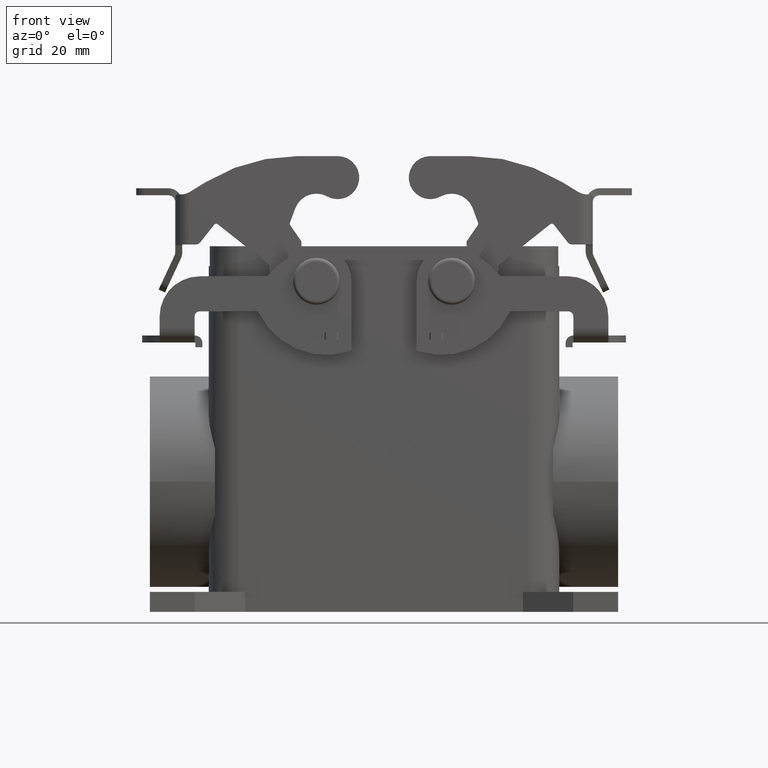
[diagram: clean part render]
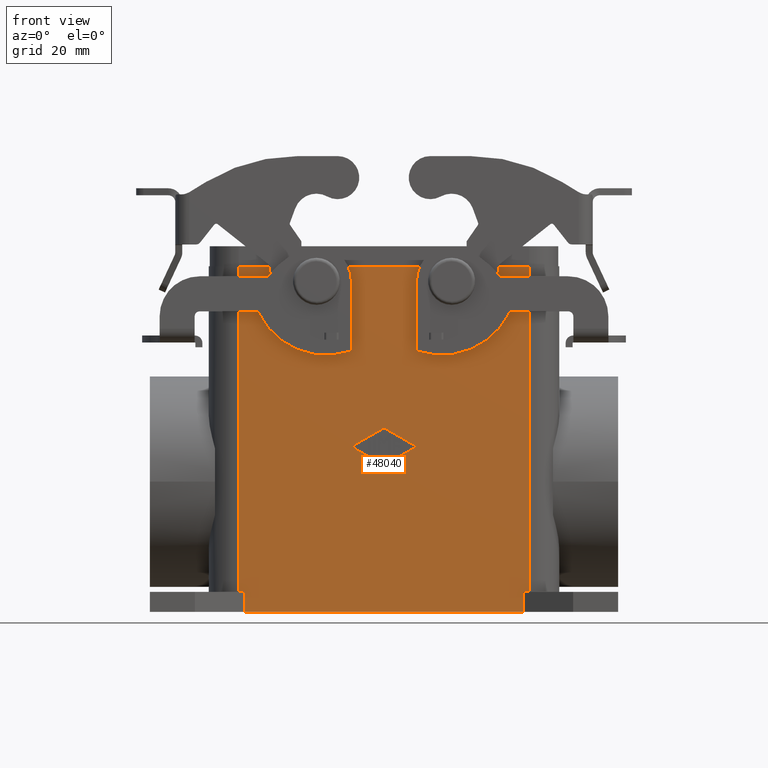
[diagram: same view with one face highlighted and labeled with its STEP entity id]
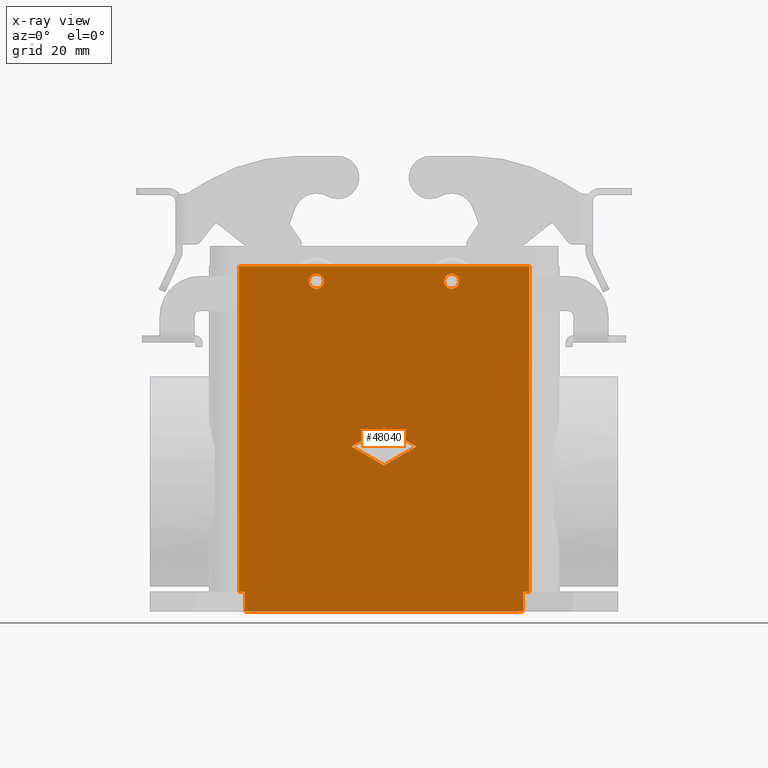
[diagram: x-ray of the same camera — body ghosted, the highlighted face saturated]
A machine part, front view. The second image highlights one B-rep face of the part: STEP entity #48040.
The next image is the same camera in x-ray: the body ghosted, the highlighted face saturated — about 0% of this face is hidden behind the body in this view.
In plain terms, the highlighted planar face has unit normal (0, -1, 0).
Its self-contained STEP definition (entity closure, byte-faithful):
#13010=CARTESIAN_POINT('',(8.15769674034063E-32,-22.25,1.50000000000003)
);
#13020=VERTEX_POINT('',#13010);
#13200=CARTESIAN_POINT('',(-1.83697019872104E-16,-22.25,
-1.49999999999999));
#13210=VERTEX_POINT('',#13200);
#13240=CARTESIAN_POINT('',(0.,-22.25,1.471049E-14));
#13250=DIRECTION('',(0.,1.,0.));
#13260=DIRECTION('',(0.,0.,1.));
#13270=AXIS2_PLACEMENT_3D('',#13240,#13250,#13260);
#13280=CIRCLE('',#13270,1.50000000000001);
#13290=EDGE_CURVE('',#13210,#13020,#13280,.T.);
#18550=CARTESIAN_POINT('',(-27.,-22.25,-1.5));
#18560=VERTEX_POINT('',#18550);
#18740=CARTESIAN_POINT('',(-27.,-22.25,1.50000000000002));
#18750=VERTEX_POINT('',#18740);
#18780=CARTESIAN_POINT('',(-27.,-22.25,1.471049E-14));
#18790=DIRECTION('',(0.,1.,0.));
#18800=DIRECTION('',(0.,0.,1.));
#18810=AXIS2_PLACEMENT_3D('',#18780,#18790,#18800);
#18820=CIRCLE('',#18810,1.50000000000001);
#18830=EDGE_CURVE('',#18750,#18560,#18820,.T.);
#37640=CARTESIAN_POINT('',(-13.5,-22.25,-36.748589722231));
#37650=VERTEX_POINT('',#37640);
#37700=CARTESIAN_POINT('',(-13.5,-22.25,-36.748589722231));
#37710=DIRECTION('',(-0.866281716710908,0.,0.499555789969852));
#37720=VECTOR('',#37710,7.50384601178888);
#37730=LINE('',#37700,#37720);
#37740=CARTESIAN_POINT('',(-20.0004446050268,-22.25,-32.9999999999997));
#37750=VERTEX_POINT('',#37740);
#37760=EDGE_CURVE('',#37650,#37750,#37730,.T.);
#38110=CARTESIAN_POINT('',(-6.99955539497324,-22.25,-32.9999999999997));
#38120=VERTEX_POINT('',#38110);
#38170=CARTESIAN_POINT('',(-6.99955539497324,-22.25,-32.9999999999997));
#38180=DIRECTION('',(-0.866281716710907,0.,-0.499555789969852));
#38190=VECTOR('',#38180,7.50384601178887);
#38200=LINE('',#38170,#38190);
#38210=EDGE_CURVE('',#38120,#37650,#38200,.T.);
#38490=CARTESIAN_POINT('',(-13.5,-22.25,-29.2514102777676));
#38500=VERTEX_POINT('',#38490);
#38550=CARTESIAN_POINT('',(-13.5,-22.25,-29.2514102777676));
#38560=DIRECTION('',(0.866281716710863,0.,-0.49955578996993));
#38570=VECTOR('',#38560,7.50384601178927);
#38580=LINE('',#38550,#38570);
#38590=EDGE_CURVE('',#38500,#38120,#38580,.T.);
#38840=CARTESIAN_POINT('',(-20.0004446050268,-22.25,-32.9999999999997));
#38850=DIRECTION('',(0.866281716710863,0.,0.49955578996993));
#38860=VECTOR('',#38850,7.50384601178926);
#38870=LINE('',#38840,#38860);
#38880=EDGE_CURVE('',#37750,#38500,#38870,.T.);
#47170=CARTESIAN_POINT('',(14.25,-22.25,-66.));
#47180=DIRECTION('',(0.,-1.,0.));
#47190=DIRECTION('',(0.,0.,-1.));
#47200=AXIS2_PLACEMENT_3D('',#47170,#47180,#47190);
#47210=PLANE('',#47200);
#47220=CARTESIAN_POINT('',(-41.25,-22.25,-62.));
#47230=DIRECTION('',(-1.,0.,0.));
#47240=VECTOR('',#47230,1.25);
#47250=LINE('',#47220,#47240);
#47260=CARTESIAN_POINT('',(-41.25,-22.25,-62.));
#47270=VERTEX_POINT('',#47260);
#47280=CARTESIAN_POINT('',(-42.5,-22.25,-62.));
#47290=VERTEX_POINT('',#47280);
#47300=EDGE_CURVE('',#47270,#47290,#47250,.T.);
#47310=ORIENTED_EDGE('',*,*,#47300,.F.);
#47320=CARTESIAN_POINT('',(-42.5,-22.25,-62.));
#47330=DIRECTION('',(0.,0.,1.));
#47340=VECTOR('',#47330,65.);
#47350=LINE('',#47320,#47340);
#47360=CARTESIAN_POINT('',(-42.5,-22.25,3.00000000000001));
#47370=VERTEX_POINT('',#47360);
#47380=EDGE_CURVE('',#47290,#47370,#47350,.T.);
#47390=ORIENTED_EDGE('',*,*,#47380,.F.);
#47400=CARTESIAN_POINT('',(15.5,-22.25,3.00000000000001));
#47410=DIRECTION('',(-1.,0.,0.));
#47420=VECTOR('',#47410,58.);
#47430=LINE('',#47400,#47420);
#47440=CARTESIAN_POINT('',(15.5,-22.25,3.00000000000001));
#47450=VERTEX_POINT('',#47440);
#47460=EDGE_CURVE('',#47450,#47370,#47430,.T.);
#47470=ORIENTED_EDGE('',*,*,#47460,.T.);
#47480=CARTESIAN_POINT('',(15.5,-22.25,-62.));
#47490=DIRECTION('',(0.,0.,1.));
#47500=VECTOR('',#47490,65.);
#47510=LINE('',#47480,#47500);
#47520=CARTESIAN_POINT('',(15.5,-22.25,-62.));
#47530=VERTEX_POINT('',#47520);
#47540=EDGE_CURVE('',#47530,#47450,#47510,.T.);
#47550=ORIENTED_EDGE('',*,*,#47540,.T.);
#47560=CARTESIAN_POINT('',(15.5,-22.25,-62.));
#47570=DIRECTION('',(-1.,0.,0.));
#47580=VECTOR('',#47570,1.25);
#47590=LINE('',#47560,#47580);
#47600=CARTESIAN_POINT('',(14.25,-22.25,-62.));
#47610=VERTEX_POINT('',#47600);
#47620=EDGE_CURVE('',#47530,#47610,#47590,.T.);
#47630=ORIENTED_EDGE('',*,*,#47620,.F.);
#47640=CARTESIAN_POINT('',(14.25,-22.25,-66.));
#47650=DIRECTION('',(0.,0.,1.));
#47660=VECTOR('',#47650,4.00000000000001);
#47670=LINE('',#47640,#47660);
#47680=CARTESIAN_POINT('',(14.25,-22.25,-66.));
#47690=VERTEX_POINT('',#47680);
#47700=EDGE_CURVE('',#47690,#47610,#47670,.T.);
#47710=ORIENTED_EDGE('',*,*,#47700,.T.);
#47720=CARTESIAN_POINT('',(14.25,-22.25,-66.));
#47730=DIRECTION('',(-1.,0.,0.));
#47740=VECTOR('',#47730,55.5);
#47750=LINE('',#47720,#47740);
#47760=CARTESIAN_POINT('',(-41.25,-22.25,-66.));
#47770=VERTEX_POINT('',#47760);
#47780=EDGE_CURVE('',#47690,#47770,#47750,.T.);
#47790=ORIENTED_EDGE('',*,*,#47780,.F.);
#47800=CARTESIAN_POINT('',(-41.25,-22.25,-66.));
#47810=DIRECTION('',(0.,0.,1.));
#47820=VECTOR('',#47810,4.00000000000001);
#47830=LINE('',#47800,#47820);
#47840=EDGE_CURVE('',#47770,#47270,#47830,.T.);
#47850=ORIENTED_EDGE('',*,*,#47840,.F.);
#47860=EDGE_LOOP('',(#47850,#47790,#47710,#47630,#47550,#47470,#47390,
#47310));
#47870=FACE_OUTER_BOUND('',#47860,.T.);
#47880=EDGE_CURVE('',#13020,#13210,#13280,.T.);
#47890=ORIENTED_EDGE('',*,*,#47880,.T.);
#47900=ORIENTED_EDGE('',*,*,#13290,.T.);
#47910=EDGE_LOOP('',(#47900,#47890));
#47920=FACE_BOUND('',#47910,.T.);
#47930=EDGE_CURVE('',#18560,#18750,#18820,.T.);
#47940=ORIENTED_EDGE('',*,*,#47930,.T.);
#47950=ORIENTED_EDGE('',*,*,#18830,.T.);
#47960=EDGE_LOOP('',(#47950,#47940));
#47970=FACE_BOUND('',#47960,.T.);
#47980=ORIENTED_EDGE('',*,*,#38210,.T.);
#47990=ORIENTED_EDGE('',*,*,#38590,.T.);
#48000=ORIENTED_EDGE('',*,*,#38880,.T.);
#48010=ORIENTED_EDGE('',*,*,#37760,.T.);
#48020=EDGE_LOOP('',(#48010,#48000,#47990,#47980));
#48030=FACE_BOUND('',#48020,.T.);
#48040=ADVANCED_FACE('',(#47870,#47920,#47970,#48030),#47210,.T.);